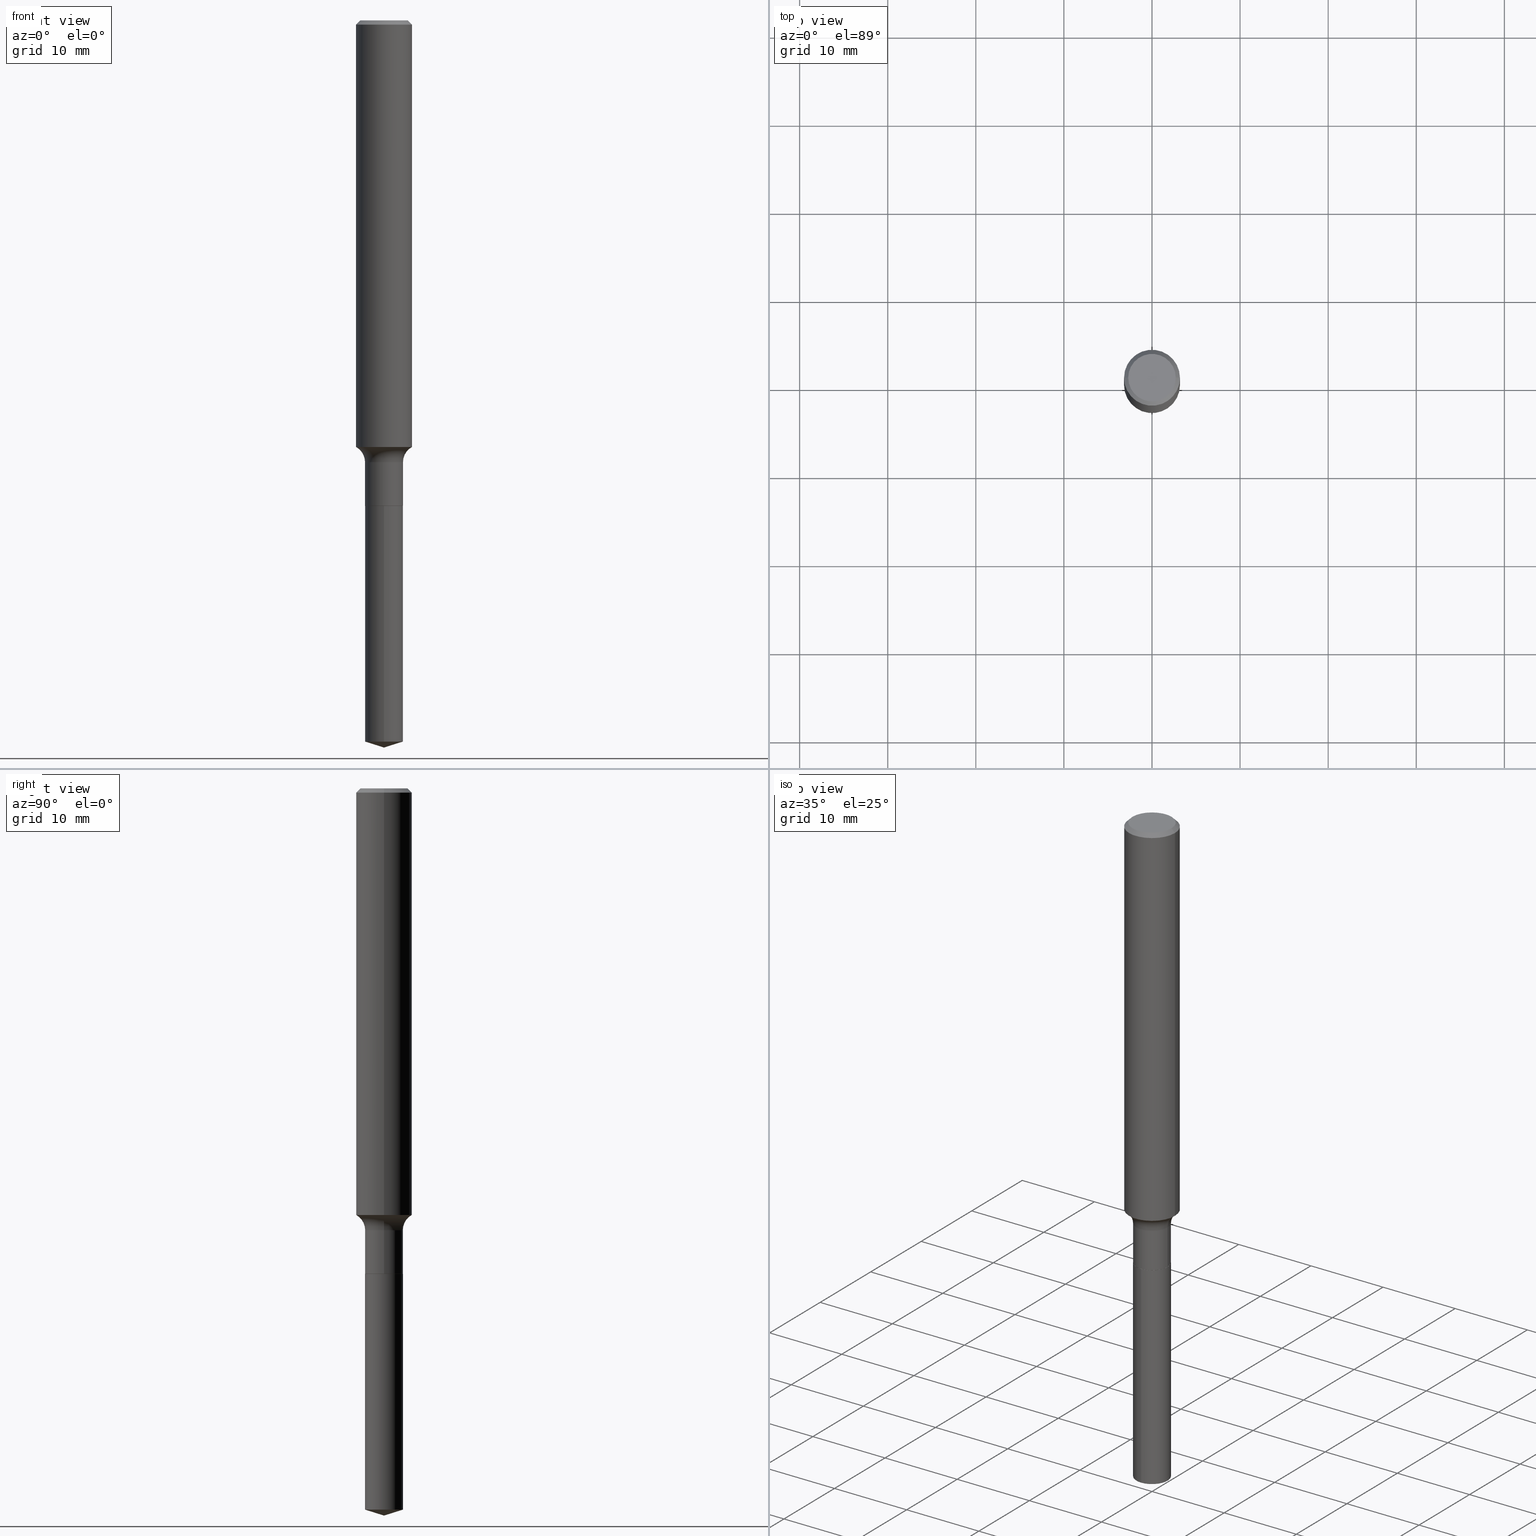
[diagram: canonical four-view strip — front | top / right | iso, engineering-drawing reading convention]
A machine part, canonical four-view strip (front | top / right | iso — engineering-drawing reading convention). The complete STEP part file that produces these views, byte-faithful:
ISO-10303-21;
HEADER;
FILE_DESCRIPTION (( 'STEP AP203' ),
    '1' );
FILE_NAME ('52325.STEP',
    '2024-04-19T13:39:46',
    ( '' ),
    ( '' ),
    'SwSTEP 2.0',
    'SolidWorks 2023',
    '' );
FILE_SCHEMA (( 'CONFIG_CONTROL_DESIGN' ));
ENDSEC;

DATA;
#1 = EDGE_CURVE ( 'NONE', #287, #374, #427, .T. ) ;
#2 = CARTESIAN_POINT ( 'NONE',  ( 5.305444575018654421E-29, -7.574768764620204541E-15, -2.169499999999999762 ) ) ;
#3 = EDGE_CURVE ( 'NONE', #374, #240, #246, .T. ) ;
#4 = CIRCLE ( 'NONE', #484, 0.08474999999999999201 ) ;
#5 = MECHANICAL_CONTEXT ( 'NONE', #420, 'mechanical' ) ;
#6 = ORIENTED_EDGE ( 'NONE', *, *, #285, .F. ) ;
#7 = ORIENTED_EDGE ( 'NONE', *, *, #429, .T. ) ;
#8 =( NAMED_UNIT ( * ) PLANE_ANGLE_UNIT ( ) SI_UNIT ( $, .RADIAN. ) );
#9 = AXIS2_PLACEMENT_3D ( 'NONE', #351, #42, #117 ) ;
#10 = AXIS2_PLACEMENT_3D ( 'NONE', #400, #432, #192 ) ;
#11 = ADVANCED_FACE ( 'NONE', ( #207 ), #322, .T. ) ;
#12 = PERSON ( 'UNSPECIFIED', 'UNSPECIFIED', 'UNSPECIFIED', ('UNSPECIFIED'), ('UNSPECIFIED'), ('UNSPECIFIED') ) ;
#13 = ORIENTED_EDGE ( 'NONE', *, *, #375, .T. ) ;
#14 = FACE_OUTER_BOUND ( 'NONE', #33, .T. ) ;
#15 = COORDINATED_UNIVERSAL_TIME_OFFSET ( 5, 0, .BEHIND. ) ;
#16 = CARTESIAN_POINT ( 'NONE',  ( 0.000000000000000000, 0.000000000000000000, 0.000000000000000000 ) ) ;
#17 = ORIENTED_EDGE ( 'NONE', *, *, #480, .T. ) ;
#18 = CIRCLE ( 'NONE', #36, 0.07799999999999995826 ) ;
#19 = DIRECTION ( 'NONE',  ( -1.000000000000000000, 6.982962677686265922E-15, -4.876176775795935793E-29 ) ) ;
#20 = EDGE_LOOP ( 'NONE', ( #489, #153, #13, #123 ) ) ;
#21 = PERSON_AND_ORGANIZATION_ROLE ( 'design_owner' ) ;
#22 = DIRECTION ( 'NONE',  ( -2.445468806185136597E-29, 3.491481338843145583E-15, 1.000000000000000000 ) ) ;
#23 = EDGE_CURVE ( 'NONE', #374, #287, #163, .T. ) ;
#24 = ORIENTED_EDGE ( 'NONE', *, *, #480, .F. ) ;
#25 = PERSON_AND_ORGANIZATION_ROLE ( 'creator' ) ;
#26 = ORIENTED_EDGE ( 'NONE', *, *, #78, .F. ) ;
#27 = CARTESIAN_POINT ( 'NONE',  ( -5.918060869338579582E-16, -0.08475000000000758316, -2.169499999999999762 ) ) ;
#28 = DIRECTION ( 'NONE',  ( 1.000000000000000000, -6.982962677686265922E-15, 4.876176775795935793E-29 ) ) ;
#29 = AXIS2_PLACEMENT_3D ( 'NONE', #337, #488, #30 ) ;
#30 = DIRECTION ( 'NONE',  ( 1.000000000000000000, -6.982962677686266711E-15, 4.883557194083112901E-29 ) ) ;
#31 = CARTESIAN_POINT ( 'NONE',  ( 5.304221840615561619E-29, -7.573023023950782248E-15, -2.169000000000000039 ) ) ;
#32 = DIRECTION ( 'NONE',  ( -1.000000000000000000, 6.982962677686266711E-15, 0.000000000000000000 ) ) ;
#33 = EDGE_LOOP ( 'NONE', ( #319, #346 ) ) ;
#34 = EDGE_CURVE ( 'NONE', #162, #374, #102, .T. ) ;
#35 = DIRECTION ( 'NONE',  ( 1.000000000000000000, -6.982962677686267499E-15, 4.876176775795935793E-29 ) ) ;
#36 = AXIS2_PLACEMENT_3D ( 'NONE', #206, #284, #410 ) ;
#37 = DIRECTION ( 'NONE',  ( -2.445468806185136597E-29, 3.491481338843145583E-15, 1.000000000000000000 ) ) ;
#38 = FACE_OUTER_BOUND ( 'NONE', #196, .T. ) ;
#39 = ORIENTED_EDGE ( 'NONE', *, *, #324, .T. ) ;
#40 = CARTESIAN_POINT ( 'NONE',  ( 0.1250000000000000000, -9.383356098140928781E-16, -0.01875000000000014155 ) ) ;
#41 = FACE_OUTER_BOUND ( 'NONE', #85, .T. ) ;
#42 = DIRECTION ( 'NONE',  ( 2.445468806185136597E-29, -3.491481338843145583E-15, -1.000000000000000000 ) ) ;
#43 = EDGE_LOOP ( 'NONE', ( #434, #61, #236, #458 ) ) ;
#44 = AXIS2_PLACEMENT_3D ( 'NONE', #394, #195, #276 ) ;
#45 = AXIS2_PLACEMENT_3D ( 'NONE', #426, #225, #114 ) ;
#46 = CARTESIAN_POINT ( 'NONE',  ( 4.828822704693170874E-29, -6.894279051679675629E-15, -1.974600000000000133 ) ) ;
#47 = CIRCLE ( 'NONE', #148, 0.1250000000000002498 ) ;
#48 = DIRECTION ( 'NONE',  ( 1.000000000000000000, -6.982962677686266711E-15, 4.875930095424100059E-29 ) ) ;
#49 = ORIENTED_EDGE ( 'NONE', *, *, #423, .F. ) ;
#50 = ORIENTED_EDGE ( 'NONE', *, *, #177, .T. ) ;
#51 = CARTESIAN_POINT ( 'NONE',  ( 6.021849685567637368E-16, 0.08474999999999241473, -2.169500000000000206 ) ) ;
#52 = PERSON_AND_ORGANIZATION ( #12, #474 ) ;
#53 = TOROIDAL_SURFACE ( 'NONE', #29, 0.1627500000000000058, 0.07799999999999995826 ) ;
#54 = CARTESIAN_POINT ( 'NONE',  ( 4.828822704693170874E-29, -6.894279051679675629E-15, -1.974600000000000133 ) ) ;
#55 = DATE_TIME_ROLE ( 'classification_date' ) ;
#56 = CARTESIAN_POINT ( 'NONE',  ( 5.305444575018654421E-29, -7.574768764620204541E-15, -2.169499999999999762 ) ) ;
#57 = DIRECTION ( 'NONE',  ( -2.445468806185136877E-29, 3.491481338843145188E-15, 1.000000000000000000 ) ) ;
#58 = COORDINATED_UNIVERSAL_TIME_OFFSET ( 5, 0, .BEHIND. ) ;
#59 = DIRECTION ( 'NONE',  ( -2.445486253200899634E-29, 3.491456353723550485E-15, 1.000000000000000000 ) ) ;
#60 = EDGE_CURVE ( 'NONE', #103, #475, #215, .T. ) ;
#61 = ORIENTED_EDGE ( 'NONE', *, *, #34, .T. ) ;
#62 =( GEOMETRIC_REPRESENTATION_CONTEXT ( 3 ) GLOBAL_UNCERTAINTY_ASSIGNED_CONTEXT ( ( #382 ) ) GLOBAL_UNIT_ASSIGNED_CONTEXT ( ( #350, #8, #270 ) ) REPRESENTATION_CONTEXT ( 'NONE', 'WORKASPACE' ) );
#63 = CARTESIAN_POINT ( 'NONE',  ( -8.833119387488989436E-28, 1.261116242091008133E-13, 36.12007874015748143 ) ) ;
#64 = CARTESIAN_POINT ( 'NONE',  ( 5.304221840615561619E-29, -7.573023023950782248E-15, -2.169000000000000039 ) ) ;
#65 = DIRECTION ( 'NONE',  ( -2.445468806185136597E-29, 3.491481338843145583E-15, 1.000000000000000000 ) ) ;
#66 = VERTEX_POINT ( 'NONE', #51 ) ;
#67 = ADVANCED_FACE ( 'NONE', ( #14 ), #431, .F. ) ;
#68 = LINE ( 'NONE', #345, #70 ) ;
#69 = AXIS2_PLACEMENT_3D ( 'NONE', #31, #330, #176 ) ;
#70 = VECTOR ( 'NONE', #464, 39.37007874015748854 ) ;
#71 = ORIENTED_EDGE ( 'NONE', *, *, #375, .F. ) ;
#72 = DIRECTION ( 'NONE',  ( -2.445468806185136597E-29, 3.491481338843145583E-15, 1.000000000000000000 ) ) ;
#73 = FACE_OUTER_BOUND ( 'NONE', #413, .T. ) ;
#74 = CONICAL_SURFACE ( 'NONE', #482, 0.08424999999999999156, 0.7853981633975507526 ) ;
#75 = VECTOR ( 'NONE', #108, 39.37007874015748143 ) ;
#76 = DIRECTION ( 'NONE',  ( 1.000000000000000000, -6.982962677686267499E-15, 4.876176775795936353E-29 ) ) ;
#77 = ORIENTED_EDGE ( 'NONE', *, *, #418, .T. ) ;
#78 = EDGE_CURVE ( 'NONE', #466, #352, #257, .T. ) ;
#79 = PRODUCT_DEFINITION_SHAPE ( 'NONE', 'NONE',  #219 ) ;
#80 = CARTESIAN_POINT ( 'NONE',  ( 7.947830322902924022E-29, -1.134723314960154144E-14, -3.250000000000000000 ) ) ;
#81 = PERSON_AND_ORGANIZATION_ROLE ( 'design_supplier' ) ;
#82 = AXIS2_PLACEMENT_3D ( 'NONE', #107, #147, #187 ) ;
#83 = EDGE_LOOP ( 'NONE', ( #397, #472, #17, #301 ) ) ;
#84 = DIRECTION ( 'NONE',  ( -2.445468806185136597E-29, 3.491481338843145583E-15, 1.000000000000000000 ) ) ;
#85 = EDGE_LOOP ( 'NONE', ( #307, #283, #111, #344 ) ) ;
#86 = EDGE_CURVE ( 'NONE', #450, #234, #158, .T. ) ;
#87 = ORIENTED_EDGE ( 'NONE', *, *, #302, .T. ) ;
#88 = DIRECTION ( 'NONE',  ( -2.445468806185136597E-29, 3.491481338843145583E-15, 1.000000000000000000 ) ) ;
#89 = DATE_AND_TIME ( #402, #174 ) ;
#90 = ORIENTED_EDGE ( 'NONE', *, *, #156, .T. ) ;
#91 = AXIS2_PLACEMENT_3D ( 'NONE', #281, #84, #48 ) ;
#92 = CIRCLE ( 'NONE', #10, 0.08474999999999999201 ) ;
#93 = CYLINDRICAL_SURFACE ( 'NONE', #468, 0.1250000000000001110 ) ;
#94 = ORIENTED_EDGE ( 'NONE', *, *, #387, .F. ) ;
#95 = PERSON_AND_ORGANIZATION_ROLE ( 'creator' ) ;
#96 = DIRECTION ( 'NONE',  ( -6.982962677686266711E-15, -1.000000000000000000, 3.491481338843145583E-15 ) ) ;
#97 = DIRECTION ( 'NONE',  ( -0.7071067811865447972, 2.468850131082228662E-15, -0.7071067811865501263 ) ) ;
#98 = ADVANCED_FACE ( 'NONE', ( #268 ), #358, .T. ) ;
#99 = ORIENTED_EDGE ( 'NONE', *, *, #459, .T. ) ;
#100 = FACE_OUTER_BOUND ( 'NONE', #389, .T. ) ;
#101 = CC_DESIGN_SECURITY_CLASSIFICATION ( #456, ( #252 ) ) ;
#102 = LINE ( 'NONE', #254, #460 ) ;
#103 = VERTEX_POINT ( 'NONE', #318 ) ;
#104 = MANIFOLD_SOLID_BREP ( 'Body-Move/Copy2[2]', #347 ) ;
#105 = DIRECTION ( 'NONE',  ( 1.000000000000000000, -6.982962677686267499E-15, 4.876176775795935793E-29 ) ) ;
#106 = CC_DESIGN_APPROVAL ( #354, ( #219 ) ) ;
#107 = CARTESIAN_POINT ( 'NONE',  ( 4.585254011597165626E-31, -6.546527510330947764E-17, -0.01875000000000014155 ) ) ;
#108 = DIRECTION ( 'NONE',  ( -2.445468806185136877E-29, 3.491481338843145188E-15, 1.000000000000000000 ) ) ;
#109 = DIRECTION ( 'NONE',  ( -2.445486253200899634E-29, 3.491456353723550485E-15, 1.000000000000000000 ) ) ;
#110 = AXIS2_PLACEMENT_3D ( 'NONE', #230, #481, #355 ) ;
#111 = ORIENTED_EDGE ( 'NONE', *, *, #186, .T. ) ;
#112 = DIRECTION ( 'NONE',  ( -6.982962677686265922E-15, -1.000000000000000000, 3.223419461550753343E-15 ) ) ;
#113 = CC_DESIGN_APPROVAL ( #259, ( #456 ) ) ;
#114 = DIRECTION ( 'NONE',  ( 1.000000000000000000, 0.000000000000000000, 0.000000000000000000 ) ) ;
#115 = DIRECTION ( 'NONE',  ( -2.445468806185136597E-29, 3.491481338843145583E-15, 1.000000000000000000 ) ) ;
#116 = FACE_OUTER_BOUND ( 'NONE', #20, .T. ) ;
#117 = DIRECTION ( 'NONE',  ( -1.000000000000000000, 6.982962677686266711E-15, 0.000000000000000000 ) ) ;
#118 = CIRCLE ( 'NONE', #209, 0.08474999999999997813 ) ;
#119 = APPROVAL_PERSON_ORGANIZATION ( #134, #354, #440 ) ;
#120 = DIRECTION ( 'NONE',  ( -0.7071067811866199593, 7.493145998870616062E-15, 0.7071067811864750752 ) ) ;
#121 = ORIENTED_EDGE ( 'NONE', *, *, #313, .T. ) ;
#122 = APPROVAL_ROLE ( '' ) ;
#123 = ORIENTED_EDGE ( 'NONE', *, *, #453, .F. ) ;
#124 = DIRECTION ( 'NONE',  ( -2.445468806185136597E-29, 3.491481338843145583E-15, 1.000000000000000000 ) ) ;
#125 = APPLICATION_CONTEXT ( 'configuration controlled 3d designs of mechanical parts and assemblies' ) ;
#126 = ORIENTED_EDGE ( 'NONE', *, *, #34, .F. ) ;
#127 = DATE_TIME_ROLE ( 'creation_date' ) ;
#128 = VERTEX_POINT ( 'NONE', #388 ) ;
#129 = DIRECTION ( 'NONE',  ( -2.445486253200899634E-29, 3.491456353723550485E-15, 1.000000000000000000 ) ) ;
#130 = APPROVAL_STATUS ( 'not_yet_approved' ) ;
#131 = AXIS2_PLACEMENT_3D ( 'NONE', #208, #249, #32 ) ;
#132 = FACE_OUTER_BOUND ( 'NONE', #242, .T. ) ;
#133 = DIRECTION ( 'NONE',  ( -2.445468806185136597E-29, 3.491481338843145583E-15, 1.000000000000000000 ) ) ;
#134 = PERSON_AND_ORGANIZATION ( #12, #474 ) ;
#135 = DIRECTION ( 'NONE',  ( -6.982962677686265922E-15, -1.000000000000000000, 3.500519750498682344E-15 ) ) ;
#136 = LINE ( 'NONE', #415, #75 ) ;
#137 = FACE_OUTER_BOUND ( 'NONE', #417, .T. ) ;
#138 = ORIENTED_EDGE ( 'NONE', *, *, #23, .F. ) ;
#139 = VECTOR ( 'NONE', #97, 39.37007874015748854 ) ;
#140 = AXIS2_PLACEMENT_3D ( 'NONE', #424, #303, #105 ) ;
#141 = DIRECTION ( 'NONE',  ( -2.445486253200899915E-29, 3.491456353723550090E-15, 1.000000000000000000 ) ) ;
#142 = ADVANCED_FACE ( 'NONE', ( #41 ), #436, .T. ) ;
#143 = VERTEX_POINT ( 'NONE', #232 ) ;
#144 = CARTESIAN_POINT ( 'NONE',  ( 0.08424999999999999156, -8.163083370215270965E-15, -2.169499999999999762 ) ) ;
#145 = FACE_OUTER_BOUND ( 'NONE', #83, .T. ) ;
#146 = ADVANCED_FACE ( 'NONE', ( #315 ), #74, .T. ) ;
#147 = DIRECTION ( 'NONE',  ( -2.445468806185136597E-29, 3.491481338843145583E-15, 1.000000000000000000 ) ) ;
#148 = AXIS2_PLACEMENT_3D ( 'NONE', #306, #72, #300 ) ;
#149 = VERTEX_POINT ( 'NONE', #80 ) ;
#150 =( LENGTH_UNIT ( ) NAMED_UNIT ( * ) SI_UNIT ( $, .METRE. ) );
#151 = CC_DESIGN_DATE_AND_TIME_ASSIGNMENT ( #286, #127, ( #219 ) ) ;
#152 = DIRECTION ( 'NONE',  ( -6.982962677686265922E-15, -1.000000000000000000, 3.223419461550753343E-15 ) ) ;
#153 = ORIENTED_EDGE ( 'NONE', *, *, #60, .T. ) ;
#154 = APPLICATION_PROTOCOL_DEFINITION ( 'international standard', 'config_control_design', 1994, #420 ) ;
#155 = CARTESIAN_POINT ( 'NONE',  ( 6.021849685567378030E-16, 0.08474999999999241473, -2.169500000000000206 ) ) ;
#156 = EDGE_CURVE ( 'NONE', #240, #128, #467, .T. ) ;
#157 = DIRECTION ( 'NONE',  ( -2.445486253200899634E-29, 3.491456353723550485E-15, 1.000000000000000000 ) ) ;
#158 = CIRCLE ( 'NONE', #91, 0.1062499999999999972 ) ;
#159 = AXIS2_PLACEMENT_3D ( 'NONE', #296, #96, #248 ) ;
#160 = CARTESIAN_POINT ( 'NONE',  ( -7.955031918821654702E-47, 1.135767727816384474E-32, 3.252968060235159383E-18 ) ) ;
#161 = CALENDAR_DATE ( 2024, 19, 4 ) ;
#162 = VERTEX_POINT ( 'NONE', #438 ) ;
#163 = CIRCLE ( 'NONE', #391, 0.08474999999999999201 ) ;
#164 = PERSON_AND_ORGANIZATION ( #12, #474 ) ;
#165 = CC_DESIGN_APPROVAL ( #430, ( #252 ) ) ;
#166 = CC_DESIGN_PERSON_AND_ORGANIZATION_ASSIGNMENT ( #241, #473, ( #456 ) ) ;
#167 = ORIENTED_EDGE ( 'NONE', *, *, #186, .F. ) ;
#168 = APPLICATION_PROTOCOL_DEFINITION ( 'international standard', 'config_control_design', 1994, #125 ) ;
#169 = LINE ( 'NONE', #379, #217 ) ;
#170 = FACE_OUTER_BOUND ( 'NONE', #401, .T. ) ;
#171 = ORIENTED_EDGE ( 'NONE', *, *, #263, .F. ) ;
#172 = CARTESIAN_POINT ( 'NONE',  ( -0.1062499999999999972, 7.746724220558198188E-16, 6.505936120465015526E-18 ) ) ;
#173 = AXIS2_PLACEMENT_3D ( 'NONE', #439, #157, #356 ) ;
#174 = LOCAL_TIME ( 9, 39, 46.00000000000000000, #237 ) ;
#175 = DIRECTION ( 'NONE',  ( -2.438088387897960049E-29, 3.491481338843145188E-15, 1.000000000000000000 ) ) ;
#176 = DIRECTION ( 'NONE',  ( 1.000000000000000000, -6.982962677686267499E-15, 0.000000000000000000 ) ) ;
#177 = EDGE_CURVE ( 'NONE', #128, #240, #118, .T. ) ;
#178 = FACE_OUTER_BOUND ( 'NONE', #181, .T. ) ;
#179 = LOCAL_TIME ( 9, 39, 46.00000000000000000, #327 ) ;
#180 = DIRECTION ( 'NONE',  ( 1.000000000000000000, -6.982962677686261977E-15, 0.000000000000000000 ) ) ;
#181 = EDGE_LOOP ( 'NONE', ( #384, #321 ) ) ;
#182 = CARTESIAN_POINT ( 'NONE',  ( -0.08474999999999999201, -6.631466069258544482E-15, -2.169000000000000039 ) ) ;
#183 = EDGE_CURVE ( 'NONE', #197, #240, #18, .T. ) ;
#184 = CARTESIAN_POINT ( 'NONE',  ( 5.305444575018654421E-29, -7.574768764620204541E-15, -2.169499999999999762 ) ) ;
#185 = DIRECTION ( 'NONE',  ( -2.445468806185136877E-29, 3.491481338843145188E-15, 1.000000000000000000 ) ) ;
#186 = EDGE_CURVE ( 'NONE', #234, #352, #291, .T. ) ;
#187 = DIRECTION ( 'NONE',  ( 1.000000000000000000, -6.982962677686266711E-15, 0.000000000000000000 ) ) ;
#188 = VECTOR ( 'NONE', #202, 39.37007874015748143 ) ;
#189 = LENGTH_MEASURE_WITH_UNIT ( LENGTH_MEASURE( 0.02539999999999999897 ), #150 );
#190 = ORIENTED_EDGE ( 'NONE', *, *, #86, .F. ) ;
#191 = EDGE_LOOP ( 'NONE', ( #269, #470, #224 ) ) ;
#192 = DIRECTION ( 'NONE',  ( -6.982962677686265922E-15, -1.000000000000000000, 6.446838923101506686E-15 ) ) ;
#193 = CARTESIAN_POINT ( 'NONE',  ( 4.585254011597165626E-31, -6.546527510330947764E-17, -0.01875000000000014155 ) ) ;
#194 = LOCAL_TIME ( 9, 39, 46.00000000000000000, #15 ) ;
#195 = DIRECTION ( 'NONE',  ( -2.445468806185136597E-29, 3.491481338843145583E-15, 1.000000000000000000 ) ) ;
#196 = EDGE_LOOP ( 'NONE', ( #342, #94, #360, #50 ) ) ;
#197 = VERTEX_POINT ( 'NONE', #339 ) ;
#198 = CC_DESIGN_DATE_AND_TIME_ASSIGNMENT ( #335, #55, ( #456 ) ) ;
#199 = CONICAL_SURFACE ( 'NONE', #310, 124.8659371009158576, 1.265363707695893458 ) ;
#200 = SECURITY_CLASSIFICATION_LEVEL ( 'unclassified' ) ;
#201 = VECTOR ( 'NONE', #185, 39.37007874015748143 ) ;
#202 = DIRECTION ( 'NONE',  ( -2.445468806185136877E-29, 3.491481338843145188E-15, 1.000000000000000000 ) ) ;
#203 = APPROVAL_DATE_TIME ( #485, #259 ) ;
#204 = ORIENTED_EDGE ( 'NONE', *, *, #365, .F. ) ;
#205 = ADVANCED_FACE ( 'NONE', ( #372 ), #199, .T. ) ;
#206 = CARTESIAN_POINT ( 'NONE',  ( -0.1627500000000000058, -5.737870749230112929E-15, -1.974600000000000133 ) ) ;
#207 = FACE_OUTER_BOUND ( 'NONE', #43, .T. ) ;
#208 = CARTESIAN_POINT ( 'NONE',  ( 4.585254011597165626E-31, -6.546527510330947764E-17, -0.01875000000000014155 ) ) ;
#209 = AXIS2_PLACEMENT_3D ( 'NONE', #54, #362, #451 ) ;
#210 = TOROIDAL_SURFACE ( 'NONE', #414, 0.1627500000000000058, 0.07799999999999995826 ) ;
#211 = LINE ( 'NONE', #331, #188 ) ;
#212 = DIRECTION ( 'NONE',  ( -2.445486253200899634E-29, 3.491456353723550485E-15, 1.000000000000000000 ) ) ;
#213 = ORIENTED_EDGE ( 'NONE', *, *, #183, .T. ) ;
#214 = CC_DESIGN_PERSON_AND_ORGANIZATION_ASSIGNMENT ( #406, #21, ( #308 ) ) ;
#215 = CIRCLE ( 'NONE', #173, 0.08474999999999999201 ) ;
#216 = ADVANCED_FACE ( 'NONE', ( #253 ), #288, .T. ) ;
#217 = VECTOR ( 'NONE', #256, 39.37007874015748854 ) ;
#218 = CARTESIAN_POINT ( 'NONE',  ( 0.08424999999999999156, -8.163083370215270965E-15, -2.169499999999999762 ) ) ;
#219 = PRODUCT_DEFINITION ( 'UNKNOWN', '', #252, #349 ) ;
#220 = CARTESIAN_POINT ( 'NONE',  ( 5.305444575018654421E-29, -7.574768764620204541E-15, -2.169499999999999762 ) ) ;
#221 = DIRECTION ( 'NONE',  ( 0.7071067811866199593, -2.468850131083015945E-15, 0.7071067811864750752 ) ) ;
#222 = AXIS2_PLACEMENT_3D ( 'NONE', #193, #398, #312 ) ;
#223 = CIRCLE ( 'NONE', #159, 0.07799999999999995826 ) ;
#224 = ORIENTED_EDGE ( 'NONE', *, *, #459, .F. ) ;
#225 = DIRECTION ( 'NONE',  ( 0.000000000000000000, 0.000000000000000000, 1.000000000000000000 ) ) ;
#226 = LINE ( 'NONE', #155, #323 ) ;
#227 = ADVANCED_FACE ( 'NONE', ( #178 ), #449, .F. ) ;
#228 = DIRECTION ( 'NONE',  ( 2.438088387897960049E-29, -3.491481338843145188E-15, -1.000000000000000000 ) ) ;
#229 = CARTESIAN_POINT ( 'NONE',  ( 0.08474999999999999201, -5.918060869339111077E-16, 4.132559817487055052E-30 ) ) ;
#230 = CARTESIAN_POINT ( 'NONE',  ( 5.305444575018654421E-29, -7.574768764620204541E-15, -2.169499999999999762 ) ) ;
#231 = ADVANCED_FACE ( 'NONE', ( #170 ), #311, .T. ) ;
#232 = CARTESIAN_POINT ( 'NONE',  ( 0.1250000000000001943, -7.528833404774743812E-15, -1.906343590044597303 ) ) ;
#233 = CIRCLE ( 'NONE', #492, 0.1062499999999999972 ) ;
#234 = VERTEX_POINT ( 'NONE', #172 ) ;
#235 = COORDINATED_UNIVERSAL_TIME_OFFSET ( 5, 0, .BEHIND. ) ;
#236 = ORIENTED_EDGE ( 'NONE', *, *, #1, .F. ) ;
#237 = COORDINATED_UNIVERSAL_TIME_OFFSET ( 5, 0, .BEHIND. ) ;
#238 = CALENDAR_DATE ( 2024, 19, 4 ) ;
#239 = CARTESIAN_POINT ( 'NONE',  ( 0.000000000000000000, 0.000000000000000000, 0.000000000000000000 ) ) ;
#240 = VERTEX_POINT ( 'NONE', #412 ) ;
#241 = PERSON_AND_ORGANIZATION ( #12, #474 ) ;
#242 = EDGE_LOOP ( 'NONE', ( #326, #213, #90, #6 ) ) ;
#243 = EDGE_CURVE ( 'NONE', #234, #450, #233, .T. ) ;
#244 = CC_DESIGN_PERSON_AND_ORGANIZATION_ASSIGNMENT ( #447, #95, ( #219 ) ) ;
#245 = CARTESIAN_POINT ( 'NONE',  ( 5.305444575018654421E-29, -7.574768764620204541E-15, -2.169499999999999762 ) ) ;
#246 = LINE ( 'NONE', #250, #491 ) ;
#247 = APPROVAL_DATE_TIME ( #89, #430 ) ;
#248 = DIRECTION ( 'NONE',  ( 1.000000000000000000, -6.982962677686261977E-15, 0.000000000000000000 ) ) ;
#249 = DIRECTION ( 'NONE',  ( 2.445468806185136597E-29, -3.491481338843145583E-15, -1.000000000000000000 ) ) ;
#250 = CARTESIAN_POINT ( 'NONE',  ( -0.08474999999999999201, 6.021849685566848507E-16, -4.168797488991032273E-30 ) ) ;
#251 = DIRECTION ( 'NONE',  ( -6.659769872151635244E-15, -0.9537169507482271547, 0.3007057995042720644 ) ) ;
#252 = PRODUCT_DEFINITION_FORMATION_WITH_SPECIFIED_SOURCE ( 'ANY', '', #308, .NOT_KNOWN. ) ;
#253 = FACE_OUTER_BOUND ( 'NONE', #407, .T. ) ;
#254 = CARTESIAN_POINT ( 'NONE',  ( -0.08424999999999999156, -6.976136509742320589E-15, -2.169499999999999762 ) ) ;
#255 = DIRECTION ( 'NONE',  ( 1.000000000000000000, -6.982962677686266711E-15, 4.883557194083112901E-29 ) ) ;
#256 = DIRECTION ( 'NONE',  ( 6.776566513254261293E-15, 0.9537169507482292641, 0.3007057995042654586 ) ) ;
#257 = CIRCLE ( 'NONE', #222, 0.1250000000000000000 ) ;
#258 = VECTOR ( 'NONE', #221, 39.37007874015748143 ) ;
#259 = APPROVAL ( #320, 'UNSPECIFIED' ) ;
#260 = CARTESIAN_POINT ( 'NONE',  ( 0.1062499999999999972, -8.259777185439879685E-16, 6.505936120475800733E-18 ) ) ;
#261 = DIRECTION ( 'NONE',  ( 6.982962677686265922E-15, 1.000000000000000000, -3.491456353723550090E-15 ) ) ;
#262 = DIRECTION ( 'NONE',  ( -2.445486253200899915E-29, 3.491456353723550090E-15, 1.000000000000000000 ) ) ;
#263 = EDGE_CURVE ( 'NONE', #143, #466, #211, .T. ) ;
#264 = ORIENTED_EDGE ( 'NONE', *, *, #453, .T. ) ;
#265 = CARTESIAN_POINT ( 'NONE',  ( -5.918060869338321230E-16, -0.08475000000001123301, -3.223278427642505939 ) ) ;
#266 = AXIS2_PLACEMENT_3D ( 'NONE', #338, #133, #292 ) ;
#267 = AXIS2_PLACEMENT_3D ( 'NONE', #479, #129, #442 ) ;
#268 = FACE_OUTER_BOUND ( 'NONE', #425, .T. ) ;
#269 = ORIENTED_EDGE ( 'NONE', *, *, #418, .F. ) ;
#270 =( NAMED_UNIT ( * ) SI_UNIT ( $, .STERADIAN. ) SOLID_ANGLE_UNIT ( ) );
#271 = MANIFOLD_SOLID_BREP ( 'Body-Move/Copy2[1]', #368 ) ;
#272 = ADVANCED_FACE ( 'NONE', ( #132 ), #53, .F. ) ;
#273 = CYLINDRICAL_SURFACE ( 'NONE', #353, 0.08474999999999999201 ) ;
#274 = ORIENTED_EDGE ( 'NONE', *, *, #60, .F. ) ;
#275 = ADVANCED_FACE ( 'NONE', ( #137 ), #334, .T. ) ;
#276 = DIRECTION ( 'NONE',  ( 1.000000000000000000, -6.982962677686268288E-15, 0.000000000000000000 ) ) ;
#277 = VECTOR ( 'NONE', #251, 39.37007874015748854 ) ;
#278 = ORIENTED_EDGE ( 'NONE', *, *, #324, .F. ) ;
#279 = CARTESIAN_POINT ( 'NONE',  ( 5.305444575018654421E-29, -7.574768764620204541E-15, -2.169499999999999762 ) ) ;
#280 = ORIENTED_EDGE ( 'NONE', *, *, #336, .T. ) ;
#281 = CARTESIAN_POINT ( 'NONE',  ( -1.591006383764330940E-46, 2.271535455632768948E-32, 6.505936120470318766E-18 ) ) ;
#282 = PERSON_AND_ORGANIZATION ( #12, #474 ) ;
#283 = ORIENTED_EDGE ( 'NONE', *, *, #243, .F. ) ;
#284 = DIRECTION ( 'NONE',  ( 7.105427357601001859E-15, 1.000000000000000000, -3.491481338843145583E-15 ) ) ;
#285 = EDGE_CURVE ( 'NONE', #143, #128, #223, .T. ) ;
#286 = DATE_AND_TIME ( #161, #179 ) ;
#287 = VERTEX_POINT ( 'NONE', #452 ) ;
#288 = CYLINDRICAL_SURFACE ( 'NONE', #332, 0.08474999999999999201 ) ;
#289 = EDGE_LOOP ( 'NONE', ( #49, #87, #369, #204 ) ) ;
#290 = CIRCLE ( 'NONE', #437, 0.1250000000000002498 ) ;
#291 = LINE ( 'NONE', #476, #139 ) ;
#292 = DIRECTION ( 'NONE',  ( 1.000000000000000000, -6.982962677686261977E-15, 0.000000000000000000 ) ) ;
#293 = DATE_AND_TIME ( #478, #194 ) ;
#294 = DIRECTION ( 'NONE',  ( -2.445486253200899634E-29, 3.491456353723550485E-15, 1.000000000000000000 ) ) ;
#295 = ADVANCED_FACE ( 'NONE', ( #100 ), #416, .T. ) ;
#296 = CARTESIAN_POINT ( 'NONE',  ( 0.1627500000000000058, -8.030756227473115473E-15, -1.974600000000000133 ) ) ;
#297 = CC_DESIGN_PERSON_AND_ORGANIZATION_ASSIGNMENT ( #363, #25, ( #252 ) ) ;
#298 = DIRECTION ( 'NONE',  ( -2.445468806185136597E-29, 3.491481338843145583E-15, 1.000000000000000000 ) ) ;
#299 = AXIS2_PLACEMENT_3D ( 'NONE', #16, #325, #76 ) ;
#300 = DIRECTION ( 'NONE',  ( 1.000000000000000000, -6.982962677686264344E-15, 0.000000000000000000 ) ) ;
#301 = ORIENTED_EDGE ( 'NONE', *, *, #156, .F. ) ;
#302 = EDGE_CURVE ( 'NONE', #197, #143, #290, .T. ) ;
#303 = DIRECTION ( 'NONE',  ( -2.445468806185136597E-29, 3.491481338843145583E-15, 1.000000000000000000 ) ) ;
#304 = CIRCLE ( 'NONE', #340, 0.08474999999999999201 ) ;
#305 = APPROVAL_PERSON_ORGANIZATION ( #52, #259, #396 ) ;
#306 = CARTESIAN_POINT ( 'NONE',  ( 4.661903783325048642E-29, -6.655963070063959684E-15, -1.906343590044597303 ) ) ;
#307 = ORIENTED_EDGE ( 'NONE', *, *, #357, .F. ) ;
#308 = PRODUCT ( '52325', '52325', '', ( #5 ) ) ;
#309 = ADVANCED_FACE ( 'NONE', ( #445 ), #93, .T. ) ;
#310 = AXIS2_PLACEMENT_3D ( 'NONE', #63, #59, #135 ) ;
#311 = CONICAL_SURFACE ( 'NONE', #131, 0.1250000000000000000, 0.7853981633974445042 ) ;
#312 = DIRECTION ( 'NONE',  ( 1.000000000000000000, -6.982962677686266711E-15, 0.000000000000000000 ) ) ;
#313 = EDGE_CURVE ( 'NONE', #162, #395, #392, .T. ) ;
#314 = ORIENTED_EDGE ( 'NONE', *, *, #448, .F. ) ;
#315 = FACE_OUTER_BOUND ( 'NONE', #463, .T. ) ;
#316 = ORIENTED_EDGE ( 'NONE', *, *, #1, .T. ) ;
#317 = ADVANCED_FACE ( 'NONE', ( #73 ), #390, .F. ) ;
#318 = CARTESIAN_POINT ( 'NONE',  ( 6.021849685567635396E-16, 0.08474999999998872324, -3.223278427642507271 ) ) ;
#319 = ORIENTED_EDGE ( 'NONE', *, *, #243, .T. ) ;
#320 = APPROVAL_STATUS ( 'not_yet_approved' ) ;
#321 = ORIENTED_EDGE ( 'NONE', *, *, #313, .F. ) ;
#322 = CONICAL_SURFACE ( 'NONE', #266, 0.08424999999999999156, 0.7853981633975507526 ) ;
#323 = VECTOR ( 'NONE', #262, 39.37007874015748143 ) ;
#324 = EDGE_CURVE ( 'NONE', #444, #66, #304, .T. ) ;
#325 = DIRECTION ( 'NONE',  ( -2.445468806185136597E-29, 3.491481338843145583E-15, 1.000000000000000000 ) ) ;
#326 = ORIENTED_EDGE ( 'NONE', *, *, #302, .F. ) ;
#327 = COORDINATED_UNIVERSAL_TIME_OFFSET ( 5, 0, .BEHIND. ) ;
#328 = ORIENTED_EDGE ( 'NONE', *, *, #177, .F. ) ;
#329 = DIRECTION ( 'NONE',  ( 1.000000000000000000, -6.982962677686266711E-15, 4.875930095424100059E-29 ) ) ;
#330 = DIRECTION ( 'NONE',  ( -2.445468806185136597E-29, 3.491481338843145583E-15, 1.000000000000000000 ) ) ;
#331 = CARTESIAN_POINT ( 'NONE',  ( 0.1250000000000001110, -8.728703347107842263E-16, 6.095220969744926047E-30 ) ) ;
#332 = AXIS2_PLACEMENT_3D ( 'NONE', #373, #65, #35 ) ;
#333 = ORIENTED_EDGE ( 'NONE', *, *, #387, .T. ) ;
#334 = CONICAL_SURFACE ( 'NONE', #267, 124.8659371009158576, 1.265363707695893458 ) ;
#335 = DATE_AND_TIME ( #366, #378 ) ;
#336 = EDGE_CURVE ( 'NONE', #395, #287, #421, .T. ) ;
#337 = CARTESIAN_POINT ( 'NONE',  ( 4.828822704693170874E-29, -6.894279051679675629E-15, -1.974600000000000133 ) ) ;
#338 = CARTESIAN_POINT ( 'NONE',  ( 5.305444575018654421E-29, -7.574768764620204541E-15, -2.169499999999999762 ) ) ;
#339 = CARTESIAN_POINT ( 'NONE',  ( -0.1250000000000001943, -5.767784650363833663E-15, -1.906343590044597303 ) ) ;
#340 = AXIS2_PLACEMENT_3D ( 'NONE', #184, #109, #152 ) ;
#341 = DIRECTION ( 'NONE',  ( -6.982962677686265922E-15, -1.000000000000000000, 3.223419461550753343E-15 ) ) ;
#342 = ORIENTED_EDGE ( 'NONE', *, *, #183, .F. ) ;
#343 = LINE ( 'NONE', #383, #461 ) ;
#344 = ORIENTED_EDGE ( 'NONE', *, *, #365, .T. ) ;
#345 = CARTESIAN_POINT ( 'NONE',  ( 0.1250000000000000000, -9.230275248247509846E-16, -0.01875000000000014155 ) ) ;
#346 = ORIENTED_EDGE ( 'NONE', *, *, #86, .T. ) ;
#347 = CLOSED_SHELL ( 'NONE', ( #11, #231, #98, #272, #216, #380, #399, #309, #142, #67, #227, #146 ) ) ;
#348 = CYLINDRICAL_SURFACE ( 'NONE', #140, 0.08474999999999999201 ) ;
#349 = DESIGN_CONTEXT ( 'detailed design', #125, 'design' ) ;
#350 =( CONVERSION_BASED_UNIT ( 'INCH', #189 ) LENGTH_UNIT ( ) NAMED_UNIT ( #419 ) );
#351 = CARTESIAN_POINT ( 'NONE',  ( 4.585254011597165626E-31, -6.546527510330947764E-17, -0.01875000000000014155 ) ) ;
#352 = VERTEX_POINT ( 'NONE', #457 ) ;
#353 = AXIS2_PLACEMENT_3D ( 'NONE', #220, #386, #112 ) ;
#354 = APPROVAL ( #130, 'UNSPECIFIED' ) ;
#355 = DIRECTION ( 'NONE',  ( 1.000000000000000000, -6.982962677686261977E-15, 0.000000000000000000 ) ) ;
#356 = DIRECTION ( 'NONE',  ( -6.982962677686265922E-15, -1.000000000000000000, 6.446838923101506686E-15 ) ) ;
#357 = EDGE_CURVE ( 'NONE', #450, #466, #68, .T. ) ;
#358 = CYLINDRICAL_SURFACE ( 'NONE', #299, 0.1250000000000001110 ) ;
#359 = CIRCLE ( 'NONE', #110, 0.08424999999999999156 ) ;
#360 = ORIENTED_EDGE ( 'NONE', *, *, #285, .T. ) ;
#361 = APPROVAL_DATE_TIME ( #293, #354 ) ;
#362 = DIRECTION ( 'NONE',  ( -2.445468806185136597E-29, 3.491481338843145583E-15, 1.000000000000000000 ) ) ;
#363 = PERSON_AND_ORGANIZATION ( #12, #474 ) ;
#364 = CARTESIAN_POINT ( 'NONE',  ( 5.305444575018654421E-29, -7.574768764620204541E-15, -2.169499999999999762 ) ) ;
#365 = EDGE_CURVE ( 'NONE', #352, #466, #370, .T. ) ;
#366 = CALENDAR_DATE ( 2024, 19, 4 ) ;
#367 = DIRECTION ( 'NONE',  ( -6.982962677686265922E-15, -1.000000000000000000, 3.223419461550753343E-15 ) ) ;
#368 = CLOSED_SHELL ( 'NONE', ( #295, #205, #275, #462, #317 ) ) ;
#369 = ORIENTED_EDGE ( 'NONE', *, *, #263, .T. ) ;
#370 = CIRCLE ( 'NONE', #82, 0.1250000000000000000 ) ;
#371 = CC_DESIGN_PERSON_AND_ORGANIZATION_ASSIGNMENT ( #282, #81, ( #252 ) ) ;
#372 = FACE_OUTER_BOUND ( 'NONE', #191, .T. ) ;
#373 = CARTESIAN_POINT ( 'NONE',  ( 0.000000000000000000, 0.000000000000000000, 0.000000000000000000 ) ) ;
#374 = VERTEX_POINT ( 'NONE', #182 ) ;
#375 = EDGE_CURVE ( 'NONE', #475, #444, #343, .T. ) ;
#376 = DIRECTION ( 'NONE',  ( 2.445486253200899634E-29, -3.491456353723550090E-15, -1.000000000000000000 ) ) ;
#377 = AXIS2_PLACEMENT_3D ( 'NONE', #2, #376, #261 ) ;
#378 = LOCAL_TIME ( 9, 39, 46.00000000000000000, #235 ) ;
#379 = CARTESIAN_POINT ( 'NONE',  ( 7.947830986725377855E-29, -1.134723314960154144E-14, -3.250000000000000000 ) ) ;
#380 = ADVANCED_FACE ( 'NONE', ( #145 ), #348, .T. ) ;
#381 = LINE ( 'NONE', #229, #201 ) ;
#382 = UNCERTAINTY_MEASURE_WITH_UNIT (LENGTH_MEASURE( 1.000000000000000082E-05 ), #350, 'distance_accuracy_value', 'NONE');
#383 = CARTESIAN_POINT ( 'NONE',  ( -5.918060869338579582E-16, -0.08475000000000758316, -2.169499999999999762 ) ) ;
#384 = ORIENTED_EDGE ( 'NONE', *, *, #408, .F. ) ;
#385 = APPROVAL_PERSON_ORGANIZATION ( #164, #430, #122 ) ;
#386 = DIRECTION ( 'NONE',  ( -2.445486253200899634E-29, 3.491456353723550485E-15, 1.000000000000000000 ) ) ;
#387 = EDGE_CURVE ( 'NONE', #143, #197, #47, .T. ) ;
#388 = CARTESIAN_POINT ( 'NONE',  ( 0.08474999999999997813, -7.486085138613587426E-15, -1.974600000000000133 ) ) ;
#389 = EDGE_LOOP ( 'NONE', ( #99, #7, #278, #71 ) ) ;
#390 = PLANE ( 'NONE',  #377 ) ;
#391 = AXIS2_PLACEMENT_3D ( 'NONE', #64, #298, #455 ) ;
#392 = CIRCLE ( 'NONE', #428, 0.08424999999999999156 ) ;
#393 = ADVANCED_BREP_SHAPE_REPRESENTATION ( '52325', ( #271, #104, #45 ), #62 ) ;
#394 = CARTESIAN_POINT ( 'NONE',  ( 4.828822704693170874E-29, -6.894279051679675629E-15, -1.974600000000000133 ) ) ;
#395 = VERTEX_POINT ( 'NONE', #218 ) ;
#396 = APPROVAL_ROLE ( '' ) ;
#397 = ORIENTED_EDGE ( 'NONE', *, *, #3, .F. ) ;
#398 = DIRECTION ( 'NONE',  ( -2.445468806185136597E-29, 3.491481338843145583E-15, 1.000000000000000000 ) ) ;
#399 = ADVANCED_FACE ( 'NONE', ( #38 ), #210, .F. ) ;
#400 = CARTESIAN_POINT ( 'NONE',  ( 7.882445233738062826E-29, -1.125399015122944805E-14, -3.223278427642506827 ) ) ;
#401 = EDGE_LOOP ( 'NONE', ( #190, #435, #465, #167 ) ) ;
#402 = CALENDAR_DATE ( 2024, 19, 4 ) ;
#403 = SHAPE_DEFINITION_REPRESENTATION ( #79, #393 ) ;
#404 = PRODUCT_RELATED_PRODUCT_CATEGORY ( 'detail', '', ( #308 ) ) ;
#405 = DIRECTION ( 'NONE',  ( 1.000000000000000000, -6.982962677686264344E-15, 0.000000000000000000 ) ) ;
#406 = PERSON_AND_ORGANIZATION ( #12, #474 ) ;
#407 = EDGE_LOOP ( 'NONE', ( #316, #411, #328, #24 ) ) ;
#408 = EDGE_CURVE ( 'NONE', #395, #162, #359, .T. ) ;
#409 = DIRECTION ( 'NONE',  ( 1.000000000000000000, -6.982962677686267499E-15, 4.876176775795936353E-29 ) ) ;
#410 = DIRECTION ( 'NONE',  ( -1.000000000000000000, 7.105427357601001859E-15, 0.000000000000000000 ) ) ;
#411 = ORIENTED_EDGE ( 'NONE', *, *, #3, .T. ) ;
#412 = CARTESIAN_POINT ( 'NONE',  ( -0.08474999999999997813, -6.631466069258544482E-15, -1.974600000000000133 ) ) ;
#413 = EDGE_LOOP ( 'NONE', ( #39, #264 ) ) ;
#414 = AXIS2_PLACEMENT_3D ( 'NONE', #46, #490, #255 ) ;
#415 = CARTESIAN_POINT ( 'NONE',  ( -0.1250000000000001110, 8.881784197001260212E-16, -6.148668862818637832E-30 ) ) ;
#416 = CYLINDRICAL_SURFACE ( 'NONE', #446, 0.08474999999999999201 ) ;
#417 = EDGE_LOOP ( 'NONE', ( #314, #77, #274 ) ) ;
#418 = EDGE_CURVE ( 'NONE', #149, #475, #441, .T. ) ;
#419 = DIMENSIONAL_EXPONENTS ( 1.000000000000000000, 0.000000000000000000, 0.000000000000000000, 0.000000000000000000, 0.000000000000000000, 0.000000000000000000, 0.000000000000000000 ) ;
#420 = APPLICATION_CONTEXT ( 'configuration controlled 3d designs of mechanical parts and assemblies' ) ;
#421 = LINE ( 'NONE', #144, #258 ) ;
#422 = AXIS2_PLACEMENT_3D ( 'NONE', #364, #175, #28 ) ;
#423 = EDGE_CURVE ( 'NONE', #197, #352, #136, .T. ) ;
#424 = CARTESIAN_POINT ( 'NONE',  ( 0.000000000000000000, 0.000000000000000000, 0.000000000000000000 ) ) ;
#425 = EDGE_LOOP ( 'NONE', ( #333, #477, #26, #171 ) ) ;
#426 = CARTESIAN_POINT ( 'NONE',  ( 0.000000000000000000, 0.000000000000000000, 0.000000000000000000 ) ) ;
#427 = CIRCLE ( 'NONE', #69, 0.08474999999999999201 ) ;
#428 = AXIS2_PLACEMENT_3D ( 'NONE', #56, #37, #180 ) ;
#429 = EDGE_CURVE ( 'NONE', #103, #66, #226, .T. ) ;
#430 = APPROVAL ( #443, 'UNSPECIFIED' ) ;
#431 = PLANE ( 'NONE',  #454 ) ;
#432 = DIRECTION ( 'NONE',  ( -2.445486253200899634E-29, 3.491456353723550485E-15, 1.000000000000000000 ) ) ;
#433 = DIRECTION ( 'NONE',  ( 1.000000000000000000, -6.982962677686261977E-15, 0.000000000000000000 ) ) ;
#434 = ORIENTED_EDGE ( 'NONE', *, *, #408, .T. ) ;
#435 = ORIENTED_EDGE ( 'NONE', *, *, #357, .T. ) ;
#436 = CONICAL_SURFACE ( 'NONE', #9, 0.1250000000000000000, 0.7853981633974445042 ) ;
#437 = AXIS2_PLACEMENT_3D ( 'NONE', #486, #88, #405 ) ;
#438 = CARTESIAN_POINT ( 'NONE',  ( -0.08424999999999999156, -6.973487282568209388E-15, -2.169499999999999762 ) ) ;
#439 = CARTESIAN_POINT ( 'NONE',  ( 7.882445233738062826E-29, -1.125399015122944805E-14, -3.223278427642506827 ) ) ;
#440 = APPROVAL_ROLE ( '' ) ;
#441 = LINE ( 'NONE', #487, #277 ) ;
#442 = DIRECTION ( 'NONE',  ( -6.982962677686265922E-15, -1.000000000000000000, 3.500519750498682344E-15 ) ) ;
#443 = APPROVAL_STATUS ( 'not_yet_approved' ) ;
#444 = VERTEX_POINT ( 'NONE', #27 ) ;
#445 = FACE_OUTER_BOUND ( 'NONE', #289, .T. ) ;
#446 = AXIS2_PLACEMENT_3D ( 'NONE', #245, #212, #367 ) ;
#447 = PERSON_AND_ORGANIZATION ( #12, #474 ) ;
#448 = EDGE_CURVE ( 'NONE', #149, #103, #169, .T. ) ;
#449 = PLANE ( 'NONE',  #422 ) ;
#450 = VERTEX_POINT ( 'NONE', #260 ) ;
#451 = DIRECTION ( 'NONE',  ( 1.000000000000000000, -6.982962677686268288E-15, 0.000000000000000000 ) ) ;
#452 = CARTESIAN_POINT ( 'NONE',  ( 0.08474999999999999201, -8.164829110884693258E-15, -2.169000000000000039 ) ) ;
#453 = EDGE_CURVE ( 'NONE', #66, #444, #4, .T. ) ;
#454 = AXIS2_PLACEMENT_3D ( 'NONE', #160, #228, #19 ) ;
#455 = DIRECTION ( 'NONE',  ( 1.000000000000000000, -6.982962677686267499E-15, 0.000000000000000000 ) ) ;
#456 = SECURITY_CLASSIFICATION ( '', '', #200 ) ;
#457 = CARTESIAN_POINT ( 'NONE',  ( -0.1250000000000000000, -2.472535752883506421E-15, -0.01875000000000014155 ) ) ;
#458 = ORIENTED_EDGE ( 'NONE', *, *, #336, .F. ) ;
#459 = EDGE_CURVE ( 'NONE', #475, #103, #92, .T. ) ;
#460 = VECTOR ( 'NONE', #120, 39.37007874015748143 ) ;
#461 = VECTOR ( 'NONE', #141, 39.37007874015748143 ) ;
#462 = ADVANCED_FACE ( 'NONE', ( #116 ), #273, .T. ) ;
#463 = EDGE_LOOP ( 'NONE', ( #126, #121, #280, #138 ) ) ;
#464 = DIRECTION ( 'NONE',  ( 0.7071067811865447972, -7.319954787623245001E-15, -0.7071067811865501263 ) ) ;
#465 = ORIENTED_EDGE ( 'NONE', *, *, #78, .T. ) ;
#466 = VERTEX_POINT ( 'NONE', #40 ) ;
#467 = CIRCLE ( 'NONE', #44, 0.08474999999999997813 ) ;
#468 = AXIS2_PLACEMENT_3D ( 'NONE', #239, #22, #409 ) ;
#469 = LOCAL_TIME ( 9, 39, 46.00000000000000000, #58 ) ;
#470 = ORIENTED_EDGE ( 'NONE', *, *, #448, .T. ) ;
#471 = CARTESIAN_POINT ( 'NONE',  ( 5.305444575018654421E-29, -7.574768764620204541E-15, -2.169499999999999762 ) ) ;
#472 = ORIENTED_EDGE ( 'NONE', *, *, #23, .T. ) ;
#473 = PERSON_AND_ORGANIZATION_ROLE ( 'classification_officer' ) ;
#474 = ORGANIZATION ( 'UNSPECIFIED', 'UNSPECIFIED', '' ) ;
#475 = VERTEX_POINT ( 'NONE', #265 ) ;
#476 = CARTESIAN_POINT ( 'NONE',  ( -0.1250000000000000000, 8.074050596074738982E-16, -0.01875000000000014155 ) ) ;
#477 = ORIENTED_EDGE ( 'NONE', *, *, #423, .T. ) ;
#478 = CALENDAR_DATE ( 2024, 19, 4 ) ;
#479 = CARTESIAN_POINT ( 'NONE',  ( -8.833119387488989436E-28, 1.261116242091008133E-13, 36.12007874015748143 ) ) ;
#480 = EDGE_CURVE ( 'NONE', #287, #128, #381, .T. ) ;
#481 = DIRECTION ( 'NONE',  ( -2.445468806185136597E-29, 3.491481338843145583E-15, 1.000000000000000000 ) ) ;
#482 = AXIS2_PLACEMENT_3D ( 'NONE', #471, #115, #433 ) ;
#483 = CARTESIAN_POINT ( 'NONE',  ( -1.591006383764330940E-46, 2.271535455632768948E-32, 6.505936120470318766E-18 ) ) ;
#484 = AXIS2_PLACEMENT_3D ( 'NONE', #279, #294, #341 ) ;
#485 = DATE_AND_TIME ( #238, #469 ) ;
#486 = CARTESIAN_POINT ( 'NONE',  ( 4.661903783325048642E-29, -6.655963070063959684E-15, -1.906343590044597303 ) ) ;
#487 = CARTESIAN_POINT ( 'NONE',  ( 7.947754620301527938E-29, -1.134734156003546326E-14, -3.250000000000000000 ) ) ;
#488 = DIRECTION ( 'NONE',  ( -2.445468806185136597E-29, 3.491481338843145583E-15, 1.000000000000000000 ) ) ;
#489 = ORIENTED_EDGE ( 'NONE', *, *, #429, .F. ) ;
#490 = DIRECTION ( 'NONE',  ( -2.445468806185136597E-29, 3.491481338843145583E-15, 1.000000000000000000 ) ) ;
#491 = VECTOR ( 'NONE', #57, 39.37007874015748143 ) ;
#492 = AXIS2_PLACEMENT_3D ( 'NONE', #483, #124, #329 ) ;
ENDSEC;
END-ISO-10303-21;
